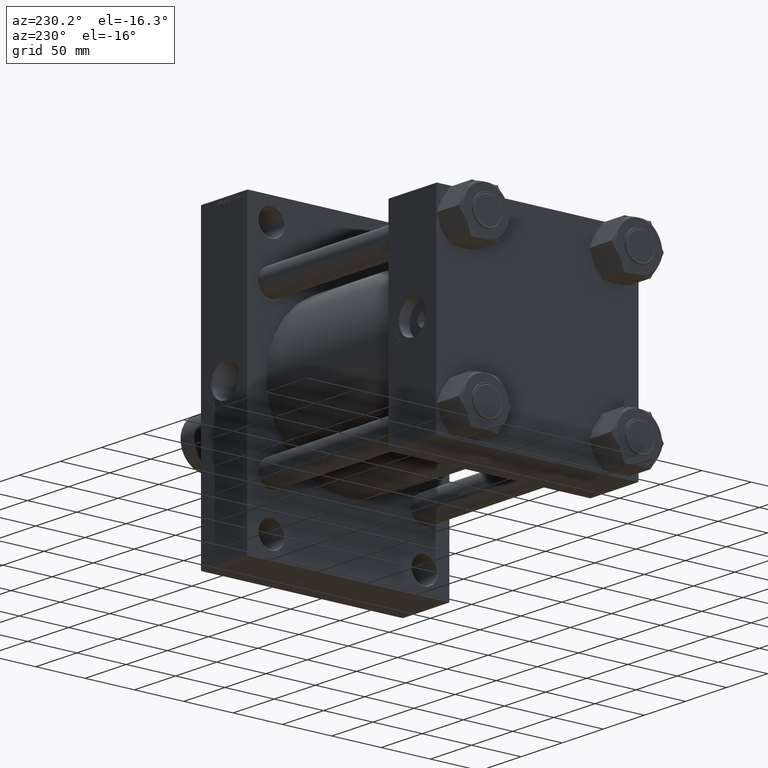
[diagram: clean part render]
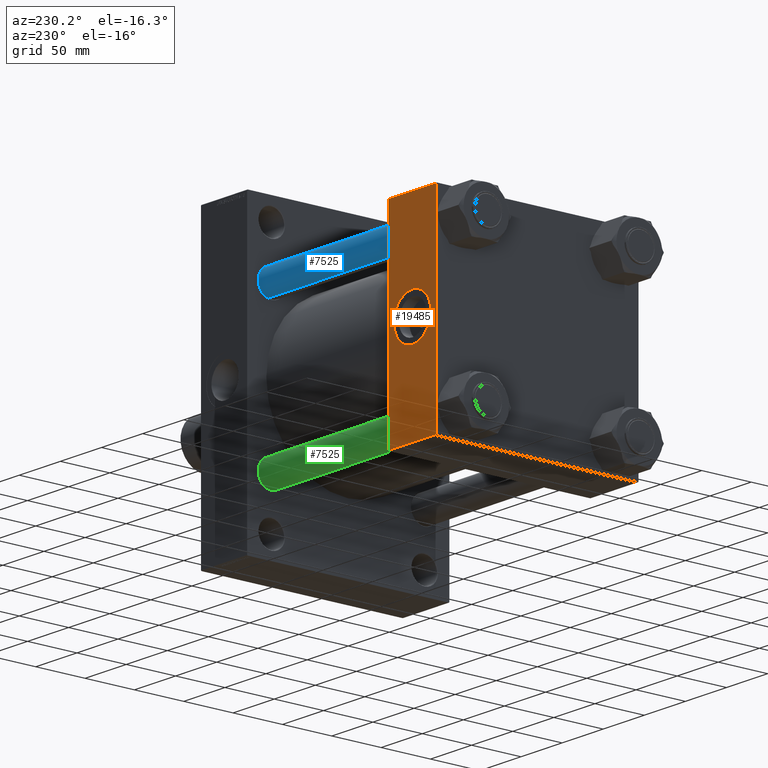
[diagram: same view with three faces highlighted in distinct colors, each labeled with its STEP entity id]
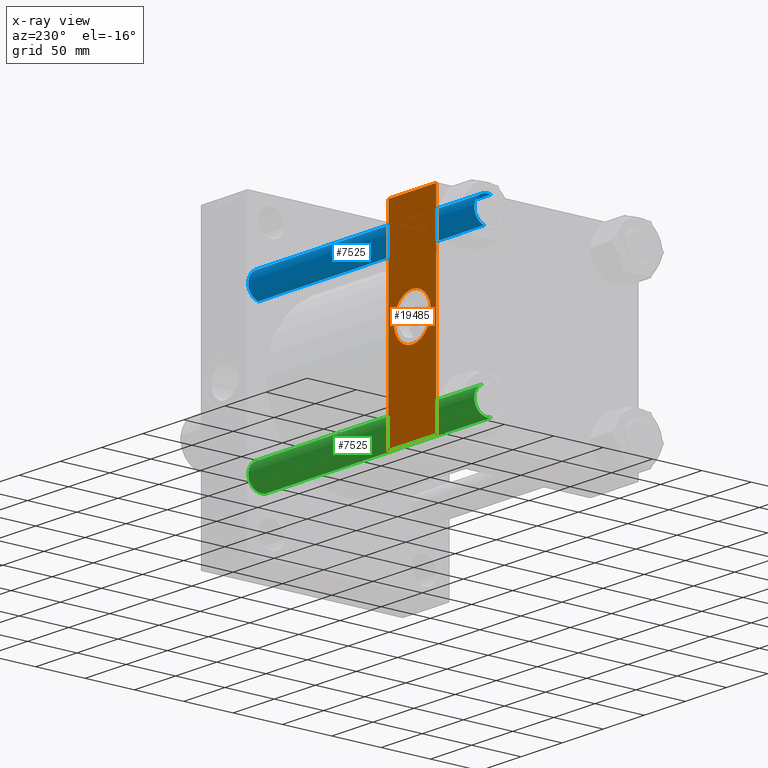
[diagram: x-ray of the same camera — body ghosted, the three highlighted faces saturated]
A machine part, auxiliary view with three faces highlighted in distinct colors.
The next image is the same camera in x-ray (body ghosted, the three faces saturated) — at least one of them is partly hidden behind the body in this view.
Their STEP definitions:

[orange] entity #19485 — the highlighted planar face has unit normal (0, 1, 0).
#270 = EDGE_CURVE ( 'NONE', #38360, #7367, #42940, .T. ) ;
#1264 = CARTESIAN_POINT ( 'NONE',  ( 58.00000000000000000, 102.5000000000000284, 102.5000000000000284 ) ) ;
#1767 = CARTESIAN_POINT ( 'NONE',  ( 58.00000000000000000, 102.5000000000000284, 102.0000000000000142 ) ) ;
#2053 = VECTOR ( 'NONE', #27915, 1000.000000000000000 ) ;
#2307 = CARTESIAN_POINT ( 'NONE',  ( 58.00000000000000000, 102.5000000000000284, 102.5000000000000284 ) ) ;
#3028 = AXIS2_PLACEMENT_3D ( 'NONE', #2307, #42971, #16902 ) ;
#3134 = CARTESIAN_POINT ( 'NONE',  ( 58.00000000000000000, 102.5000000000000284, 102.0000000000000142 ) ) ;
#4248 = DIRECTION ( 'NONE',  ( 0.000000000000000000, 0.000000000000000000, 1.000000000000000000 ) ) ;
#4473 = CIRCLE ( 'NONE', #31675, 22.50000000000000711 ) ;
#4796 = DIRECTION ( 'NONE',  ( 0.000000000000000000, 1.000000000000000000, 0.000000000000000000 ) ) ;
#6639 = ORIENTED_EDGE ( 'NONE', *, *, #39373, .F. ) ;
#7000 = ORIENTED_EDGE ( 'NONE', *, *, #16648, .F. ) ;
#7367 = VERTEX_POINT ( 'NONE', #18409 ) ;
#8375 = VERTEX_POINT ( 'NONE', #16907 ) ;
#8715 = VERTEX_POINT ( 'NONE', #1767 ) ;
#9082 = ORIENTED_EDGE ( 'NONE', *, *, #19271, .T. ) ;
#11288 = DIRECTION ( 'NONE',  ( 0.000000000000000000, 0.000000000000000000, -1.000000000000000000 ) ) ;
#11797 = DIRECTION ( 'NONE',  ( 0.000000000000000000, 1.000000000000000000, 0.000000000000000000 ) ) ;
#11982 = CARTESIAN_POINT ( 'NONE',  ( 29.00000000000000000, 102.5000000000000284, 22.50000000000000711 ) ) ;
#12688 = EDGE_CURVE ( 'NONE', #46092, #42808, #35477, .T. ) ;
#16468 = CARTESIAN_POINT ( 'NONE',  ( 58.00000000000000000, 102.5000000000000284, -101.9999999999999716 ) ) ;
#16648 = EDGE_CURVE ( 'NONE', #7367, #38360, #4473, .T. ) ;
#16902 = DIRECTION ( 'NONE',  ( 0.000000000000000000, -0.000000000000000000, 1.000000000000000000 ) ) ;
#16907 = CARTESIAN_POINT ( 'NONE',  ( 0.000000000000000000, 102.5000000000000284, 102.0000000000000142 ) ) ;
#18409 = CARTESIAN_POINT ( 'NONE',  ( 29.00000000000000355, 102.5000000000000284, -22.50000000000000711 ) ) ;
#18493 = EDGE_LOOP ( 'NONE', ( #27324, #7000 ) ) ;
#18937 = EDGE_CURVE ( 'NONE', #8715, #46092, #34608, .T. ) ;
#19271 = EDGE_CURVE ( 'NONE', #8375, #8715, #47693, .T. ) ;
#19342 = DIRECTION ( 'NONE',  ( 0.000000000000000000, 0.000000000000000000, -1.000000000000000000 ) ) ;
#19400 = CARTESIAN_POINT ( 'NONE',  ( 29.00000000000000000, 102.5000000000000284, 0.000000000000000000 ) ) ;
#19485 = ADVANCED_FACE ( 'NONE', ( #47104, #21038 ), #24199, .T. ) ;
#19637 = DIRECTION ( 'NONE',  ( 0.000000000000000000, 0.000000000000000000, 1.000000000000000000 ) ) ;
#20104 = ORIENTED_EDGE ( 'NONE', *, *, #18937, .T. ) ;
#21038 = FACE_OUTER_BOUND ( 'NONE', #38555, .T. ) ;
#23474 = CARTESIAN_POINT ( 'NONE',  ( 0.000000000000000000, 102.5000000000000284, 102.5000000000000284 ) ) ;
#23947 = CARTESIAN_POINT ( 'NONE',  ( 0.000000000000000000, 102.5000000000000284, -101.9999999999999147 ) ) ;
#24199 = PLANE ( 'NONE',  #3028 ) ;
#27324 = ORIENTED_EDGE ( 'NONE', *, *, #270, .F. ) ;
#27587 = CARTESIAN_POINT ( 'NONE',  ( 58.00000000000000000, 102.5000000000000284, -101.9999999999999147 ) ) ;
#27915 = DIRECTION ( 'NONE',  ( -1.000000000000000000, 0.000000000000000000, 0.000000000000000000 ) ) ;
#31675 = AXIS2_PLACEMENT_3D ( 'NONE', #33707, #11797, #4248 ) ;
#33707 = CARTESIAN_POINT ( 'NONE',  ( 29.00000000000000000, 102.5000000000000284, 0.000000000000000000 ) ) ;
#34608 = LINE ( 'NONE', #1264, #37227 ) ;
#35477 = LINE ( 'NONE', #16468, #2053 ) ;
#36015 = DIRECTION ( 'NONE',  ( 1.000000000000000000, 0.000000000000000000, 0.000000000000000000 ) ) ;
#37227 = VECTOR ( 'NONE', #11288, 1000.000000000000000 ) ;
#38360 = VERTEX_POINT ( 'NONE', #11982 ) ;
#38555 = EDGE_LOOP ( 'NONE', ( #20104, #43766, #6639, #9082 ) ) ;
#38794 = VECTOR ( 'NONE', #36015, 1000.000000000000000 ) ;
#39373 = EDGE_CURVE ( 'NONE', #8375, #42808, #41989, .T. ) ;
#41371 = AXIS2_PLACEMENT_3D ( 'NONE', #19400, #4796, #19637 ) ;
#41989 = LINE ( 'NONE', #23474, #45021 ) ;
#42808 = VERTEX_POINT ( 'NONE', #23947 ) ;
#42940 = CIRCLE ( 'NONE', #41371, 22.50000000000000711 ) ;
#42971 = DIRECTION ( 'NONE',  ( -0.000000000000000000, 1.000000000000000000, 0.000000000000000000 ) ) ;
#43766 = ORIENTED_EDGE ( 'NONE', *, *, #12688, .T. ) ;
#45021 = VECTOR ( 'NONE', #19342, 1000.000000000000000 ) ;
#46092 = VERTEX_POINT ( 'NONE', #27587 ) ;
#47104 = FACE_BOUND ( 'NONE', #18493, .T. ) ;
#47693 = LINE ( 'NONE', #3134, #38794 ) ;

[blue] entity #7525 — the highlighted cylindrical surface (edge-blend (fillet) strip) has radius 13.5 mm, axis along (-1, -0, 0).
#47 = CARTESIAN_POINT ( 'NONE',  ( -13.50000000000000000, 0.000000000000000000, 276.0000000000000000 ) ) ;
#3490 = CARTESIAN_POINT ( 'NONE',  ( -13.50000000000000000, 0.000000000000000000, 275.4999999999999432 ) ) ;
#3499 = FACE_OUTER_BOUND ( 'NONE', #25771, .T. ) ;
#3554 = AXIS2_PLACEMENT_3D ( 'NONE', #30008, #26112, #43922 ) ;
#7111 = LINE ( 'NONE', #47, #42749 ) ;
#7176 = ORIENTED_EDGE ( 'NONE', *, *, #38364, .T. ) ;
#7525 = ADVANCED_FACE ( 'NONE', ( #3499 ), #14931, .T. ) ;
#7858 = CARTESIAN_POINT ( 'NONE',  ( 0.000000000000000000, 0.000000000000000000, 0.4999999999999449329 ) ) ;
#9923 = CARTESIAN_POINT ( 'NONE',  ( 0.000000000000000000, 0.000000000000000000, 275.4999999999999432 ) ) ;
#10559 = CARTESIAN_POINT ( 'NONE',  ( 13.50000000000000000, 1.653273178848926867E-15, 275.4999999999999432 ) ) ;
#12852 = EDGE_CURVE ( 'NONE', #24522, #42021, #20745, .T. ) ;
#14931 = CYLINDRICAL_SURFACE ( 'NONE', #3554, 13.50000000000000000 ) ;
#17365 = ORIENTED_EDGE ( 'NONE', *, *, #32970, .T. ) ;
#19668 = VERTEX_POINT ( 'NONE', #27063 ) ;
#20745 = LINE ( 'NONE', #31937, #30013 ) ;
#21326 = EDGE_CURVE ( 'NONE', #38276, #19668, #7111, .T. ) ;
#22700 = DIRECTION ( 'NONE',  ( -0.000000000000000000, -0.000000000000000000, 1.000000000000000000 ) ) ;
#24508 = DIRECTION ( 'NONE',  ( 0.000000000000000000, 0.000000000000000000, -1.000000000000000000 ) ) ;
#24522 = VERTEX_POINT ( 'NONE', #10559 ) ;
#24672 = CARTESIAN_POINT ( 'NONE',  ( 13.50000000000000000, 1.653273178848926867E-15, 0.4999999999999449329 ) ) ;
#25771 = EDGE_LOOP ( 'NONE', ( #17365, #29617, #7176, #27073 ) ) ;
#26112 = DIRECTION ( 'NONE',  ( -0.000000000000000000, -0.000000000000000000, -1.000000000000000000 ) ) ;
#26809 = DIRECTION ( 'NONE',  ( 1.000000000000000000, 0.000000000000000000, 0.000000000000000000 ) ) ;
#27063 = CARTESIAN_POINT ( 'NONE',  ( -13.50000000000000000, 0.000000000000000000, 0.4999999999999449329 ) ) ;
#27073 = ORIENTED_EDGE ( 'NONE', *, *, #21326, .F. ) ;
#29617 = ORIENTED_EDGE ( 'NONE', *, *, #12852, .T. ) ;
#30008 = CARTESIAN_POINT ( 'NONE',  ( 0.000000000000000000, 0.000000000000000000, 276.0000000000000000 ) ) ;
#30013 = VECTOR ( 'NONE', #39503, 1000.000000000000000 ) ;
#31937 = CARTESIAN_POINT ( 'NONE',  ( 13.50000000000000000, 1.653273178848926867E-15, 276.0000000000000000 ) ) ;
#32970 = EDGE_CURVE ( 'NONE', #38276, #24522, #40261, .T. ) ;
#36090 = DIRECTION ( 'NONE',  ( -0.000000000000000000, -0.000000000000000000, -1.000000000000000000 ) ) ;
#36437 = CIRCLE ( 'NONE', #45743, 13.50000000000000000 ) ;
#38276 = VERTEX_POINT ( 'NONE', #3490 ) ;
#38364 = EDGE_CURVE ( 'NONE', #42021, #19668, #36437, .T. ) ;
#39503 = DIRECTION ( 'NONE',  ( -0.000000000000000000, -0.000000000000000000, -1.000000000000000000 ) ) ;
#40261 = CIRCLE ( 'NONE', #48049, 13.50000000000000000 ) ;
#42021 = VERTEX_POINT ( 'NONE', #24672 ) ;
#42749 = VECTOR ( 'NONE', #36090, 1000.000000000000000 ) ;
#43922 = DIRECTION ( 'NONE',  ( -1.000000000000000000, 0.000000000000000000, 0.000000000000000000 ) ) ;
#45743 = AXIS2_PLACEMENT_3D ( 'NONE', #7858, #22700, #26809 ) ;
#46694 = DIRECTION ( 'NONE',  ( 1.000000000000000000, 0.000000000000000000, 0.000000000000000000 ) ) ;
#48049 = AXIS2_PLACEMENT_3D ( 'NONE', #9923, #24508, #46694 ) ;

[green] entity #7525 — the highlighted cylindrical surface (edge-blend (fillet) strip) has radius 13.5 mm, axis along (1, -0, 0).
#47 = CARTESIAN_POINT ( 'NONE',  ( -13.50000000000000000, 0.000000000000000000, 276.0000000000000000 ) ) ;
#3490 = CARTESIAN_POINT ( 'NONE',  ( -13.50000000000000000, 0.000000000000000000, 275.4999999999999432 ) ) ;
#3499 = FACE_OUTER_BOUND ( 'NONE', #25771, .T. ) ;
#3554 = AXIS2_PLACEMENT_3D ( 'NONE', #30008, #26112, #43922 ) ;
#7111 = LINE ( 'NONE', #47, #42749 ) ;
#7176 = ORIENTED_EDGE ( 'NONE', *, *, #38364, .T. ) ;
#7525 = ADVANCED_FACE ( 'NONE', ( #3499 ), #14931, .T. ) ;
#7858 = CARTESIAN_POINT ( 'NONE',  ( 0.000000000000000000, 0.000000000000000000, 0.4999999999999449329 ) ) ;
#9923 = CARTESIAN_POINT ( 'NONE',  ( 0.000000000000000000, 0.000000000000000000, 275.4999999999999432 ) ) ;
#10559 = CARTESIAN_POINT ( 'NONE',  ( 13.50000000000000000, 1.653273178848926867E-15, 275.4999999999999432 ) ) ;
#12852 = EDGE_CURVE ( 'NONE', #24522, #42021, #20745, .T. ) ;
#14931 = CYLINDRICAL_SURFACE ( 'NONE', #3554, 13.50000000000000000 ) ;
#17365 = ORIENTED_EDGE ( 'NONE', *, *, #32970, .T. ) ;
#19668 = VERTEX_POINT ( 'NONE', #27063 ) ;
#20745 = LINE ( 'NONE', #31937, #30013 ) ;
#21326 = EDGE_CURVE ( 'NONE', #38276, #19668, #7111, .T. ) ;
#22700 = DIRECTION ( 'NONE',  ( -0.000000000000000000, -0.000000000000000000, 1.000000000000000000 ) ) ;
#24508 = DIRECTION ( 'NONE',  ( 0.000000000000000000, 0.000000000000000000, -1.000000000000000000 ) ) ;
#24522 = VERTEX_POINT ( 'NONE', #10559 ) ;
#24672 = CARTESIAN_POINT ( 'NONE',  ( 13.50000000000000000, 1.653273178848926867E-15, 0.4999999999999449329 ) ) ;
#25771 = EDGE_LOOP ( 'NONE', ( #17365, #29617, #7176, #27073 ) ) ;
#26112 = DIRECTION ( 'NONE',  ( -0.000000000000000000, -0.000000000000000000, -1.000000000000000000 ) ) ;
#26809 = DIRECTION ( 'NONE',  ( 1.000000000000000000, 0.000000000000000000, 0.000000000000000000 ) ) ;
#27063 = CARTESIAN_POINT ( 'NONE',  ( -13.50000000000000000, 0.000000000000000000, 0.4999999999999449329 ) ) ;
#27073 = ORIENTED_EDGE ( 'NONE', *, *, #21326, .F. ) ;
#29617 = ORIENTED_EDGE ( 'NONE', *, *, #12852, .T. ) ;
#30008 = CARTESIAN_POINT ( 'NONE',  ( 0.000000000000000000, 0.000000000000000000, 276.0000000000000000 ) ) ;
#30013 = VECTOR ( 'NONE', #39503, 1000.000000000000000 ) ;
#31937 = CARTESIAN_POINT ( 'NONE',  ( 13.50000000000000000, 1.653273178848926867E-15, 276.0000000000000000 ) ) ;
#32970 = EDGE_CURVE ( 'NONE', #38276, #24522, #40261, .T. ) ;
#36090 = DIRECTION ( 'NONE',  ( -0.000000000000000000, -0.000000000000000000, -1.000000000000000000 ) ) ;
#36437 = CIRCLE ( 'NONE', #45743, 13.50000000000000000 ) ;
#38276 = VERTEX_POINT ( 'NONE', #3490 ) ;
#38364 = EDGE_CURVE ( 'NONE', #42021, #19668, #36437, .T. ) ;
#39503 = DIRECTION ( 'NONE',  ( -0.000000000000000000, -0.000000000000000000, -1.000000000000000000 ) ) ;
#40261 = CIRCLE ( 'NONE', #48049, 13.50000000000000000 ) ;
#42021 = VERTEX_POINT ( 'NONE', #24672 ) ;
#42749 = VECTOR ( 'NONE', #36090, 1000.000000000000000 ) ;
#43922 = DIRECTION ( 'NONE',  ( -1.000000000000000000, 0.000000000000000000, 0.000000000000000000 ) ) ;
#45743 = AXIS2_PLACEMENT_3D ( 'NONE', #7858, #22700, #26809 ) ;
#46694 = DIRECTION ( 'NONE',  ( 1.000000000000000000, 0.000000000000000000, 0.000000000000000000 ) ) ;
#48049 = AXIS2_PLACEMENT_3D ( 'NONE', #9923, #24508, #46694 ) ;